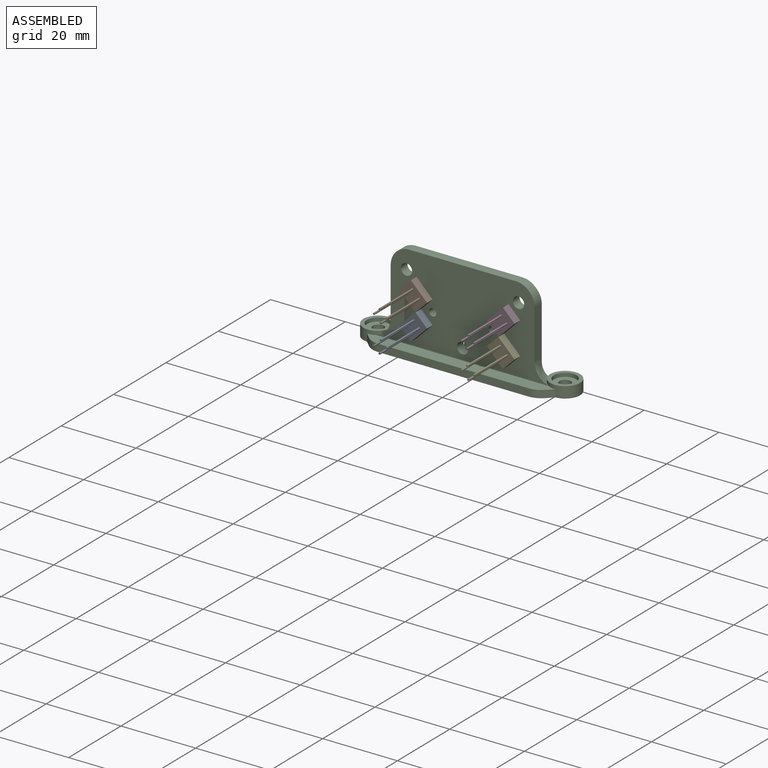
[diagram: assembled view]
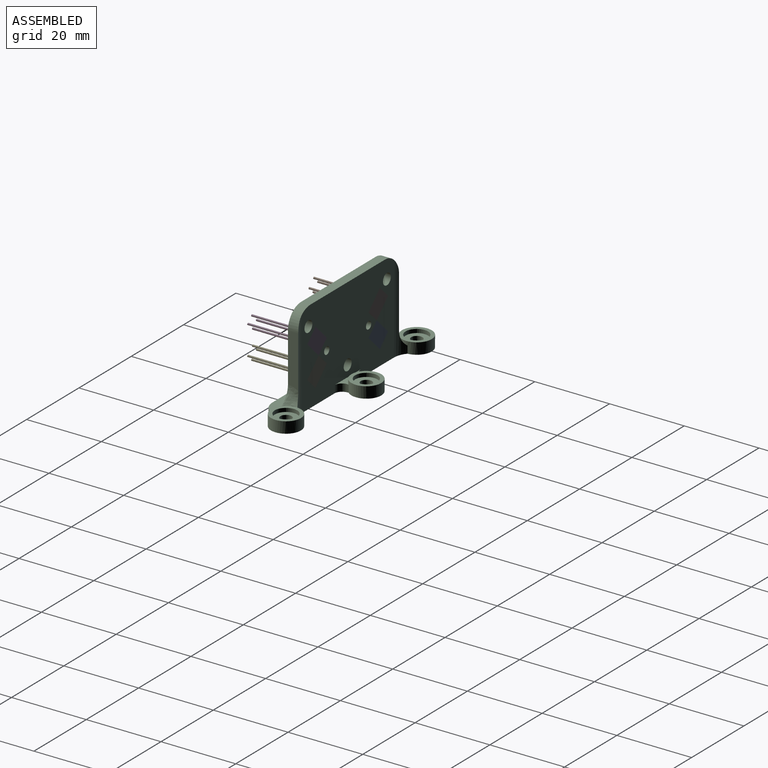
[diagram: assembled view, second angle]
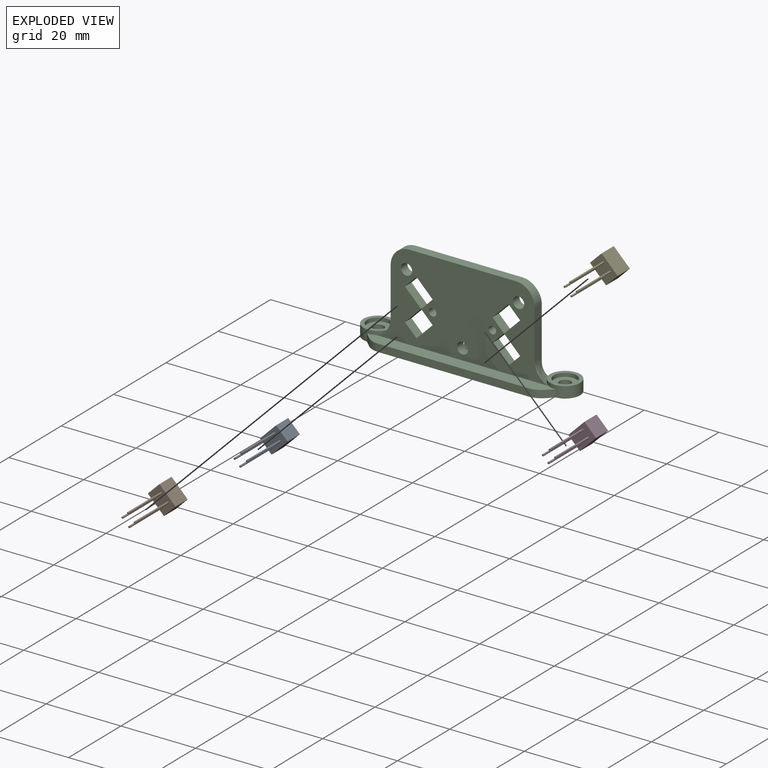
[diagram: exploded view]
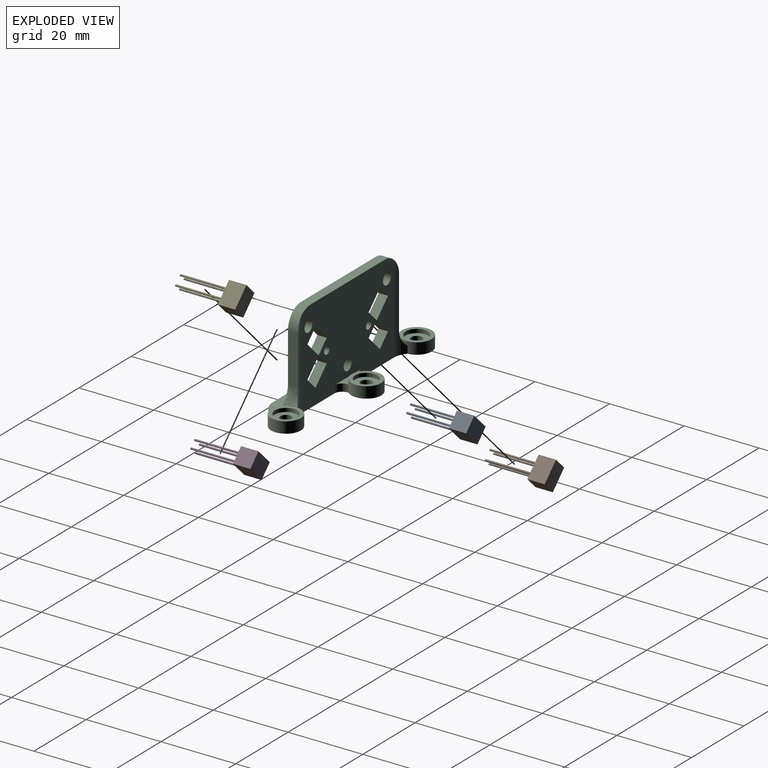
[diagram: exploded view, second angle]
ASSEMBLY  parts=5 mates=4
PART A: 14 faces, bbox 6.1x4.4x17.4 mm
  f0: cylinder r=0.25mm len=12.7mm, axis (0,0,-1), area 19.9mm2, adj f1,f10
  f1: plane 0.5x0.5mm, normal (0,0,-1), area 0.2mm2, adj f0
  f2: cylinder r=0.25mm len=12.7mm, axis (0,0,-1), area 19.9mm2, adj f3,f10
  f3: plane 0.5x0.5mm, normal (0,0,-1), area 0.2mm2, adj f2
  f4: cylinder r=0.25mm len=12.7mm, axis (0,0,-1), area 19.9mm2, adj f5,f10
  f5: plane 0.5x0.5mm, normal (0,0,-1), area 0.2mm2, adj f4
  f6: plane 6.1x4.65mm, normal (0,-1,0), area 28.4mm2, adj f7,f9,f10,f13
  f7: plane 4.65x4.39mm, normal (1,0,0), area 20.4mm2, adj f6,f8,f10,f13
  f8: plane 6.1x4.65mm, normal (0,1,0), area 28.4mm2, adj f7,f9,f10,f13
  f9: plane 4.65x4.39mm, normal (-1,0,0), area 20.4mm2, adj f6,f8,f10,f13
  f10: plane 6.1x4.39mm, normal (0,0,-1), area 26mm2, adj f0,f2,f4,f6,f7,f8,f9,f11
  f11: cylinder r=0.25mm len=12.7mm, axis (0,0,-1), area 19.9mm2, adj f10,f12
  f12: plane 0.5x0.5mm, normal (0,0,-1), area 0.2mm2, adj f11
  f13: plane 6.1x4.39mm, normal (0,0,1), area 26.8mm2, adj f6,f7,f8,f9
PART B: same geometry as A
PART C: 63 faces, bbox 58.9x15.9x25.9 mm
  f0: plane 47.01x23.88mm, normal (0,-1,0), area 750.2mm2, adj f9,f11,f12,f13,f34,f35,f36,f37
  f1: plane 35.31x25mm, normal (0,1,0), area 725.3mm2, adj f2,f8,f10,f13,f22,f25,f26,f34
  f2: cylinder r=5mm len=23.66mm, axis (0,0,-1), area 43.7mm2, adj f1,f10,f12,f17,f60,f61
  f3: plane 2x1.6mm, normal (-0.7,-0.71,0), area 4.5mm2, adj f4,f9,f10,f17
  f4: cylinder r=5mm len=3.5mm, axis (0,0,-1), area 7.8mm2, adj f3,f5,f9,f10
  f5: plane 40.22x2mm, normal (0,-1,0), area 80.4mm2, adj f4,f6,f9,f10
  f6: cylinder r=5mm len=3.5mm, axis (0,0,-1), area 7.8mm2, adj f5,f7,f9,f10
  f7: plane 2x1.6mm, normal (0.7,-0.71,0), area 4.5mm2, adj f6,f9,f10,f29
  f8: cylinder r=5mm len=23.66mm, axis (0,0,-1), area 43.7mm2, adj f1,f10,f11,f29,f59,f62
  f9: plane 50.43x3.5mm, normal (0,0,1), area 164.7mm2, adj f0,f3,f4,f5,f6,f7,f17,f29
  f10: plane 58x15mm, normal (0,0,-1), area 416.4mm2, adj f1,f2,f3,f4,f5,f6,f7,f8
  f11: plane 13.96x2.76mm, normal (1,0,0), area 36.9mm2, adj f0,f8,f59,f62
  f12: plane 13.96x2.76mm, normal (-1,0,0), area 36.9mm2, adj f0,f2,f60,f61
  f13: plane 28.5x2.5mm, normal (0,0,1), area 71.3mm2, adj f0,f1,f59,f60
  f14: cylinder r=1.5mm len=3mm, axis (0,0,-1), area 18.8mm2, adj f10,f15
  f15: plane 6x6mm, normal (0,0,1), area 21.2mm2, adj f14,f16
  f16: cylinder r=3mm len=6mm, axis (0,0,-1), area 18.8mm2, adj f15,f18
  f17: cylinder r=4mm len=8mm, axis (0,0,-1), area 61.8mm2, adj f2,f3,f9,f10,f18,f61
  f18: plane 8x8mm, normal (0,0,1), area 22mm2, adj f16,f17
  f19: cylinder r=1.5mm len=3mm, axis (0,0,-1), area 18.8mm2, adj f10,f20
  f20: plane 6x6mm, normal (0,0,1), area 21.2mm2, adj f19,f21
  f21: cylinder r=3mm len=6mm, axis (0,0,-1), area 18.8mm2, adj f20,f28
  f22: cylinder r=2mm len=2mm, axis (0,0,-1), area 6.3mm2, adj f1,f10,f23,f26
  f23: plane 2x0.35mm, normal (1,0,0), area 0.7mm2, adj f10,f22,f26,f27
  f24: plane 2x0.35mm, normal (-1,0,0), area 0.7mm2, adj f10,f25,f26,f27
  f25: cylinder r=2mm len=2mm, axis (0,0,-1), area 6.3mm2, adj f1,f10,f24,f26
  f26: plane 10x2.35mm, normal (0,0,1), area 10.2mm2, adj f1,f22,f23,f24,f25,f27
  f27: cylinder r=4mm len=8mm, axis (0,0,-1), area 61.8mm2, adj f10,f23,f24,f26,f28
  f28: plane 8x8mm, normal (0,0,1), area 22mm2, adj f21,f27
  f29: cylinder r=4mm len=8mm, axis (0,0,-1), area 61.8mm2, adj f7,f8,f9,f10,f33,f62
  f30: cylinder r=1.5mm len=3mm, axis (0,0,-1), area 18.8mm2, adj f10,f31
  f31: plane 6x6mm, normal (0,0,1), area 21.2mm2, adj f30,f32
  f32: cylinder r=3mm len=6mm, axis (0,0,-1), area 18.8mm2, adj f31,f33
  f33: plane 8x8mm, normal (0,0,1), area 22mm2, adj f29,f32
  f34: cylinder r=0.03mm len=2.5mm, axis (0,-1,0), area 0.1mm2, adj f0,f1,f35,f38
  f35: plane 3.09x3.09mm, normal (-0.71,0,0.71), area 10.9mm2, adj f0,f1,f34,f36
  f36: plane 4.31x4.31mm, normal (-0.71,0,-0.71), area 15.2mm2, adj f0,f1,f35,f37
  f37: plane 3.1x3.1mm, normal (0.71,0,-0.71), area 11mm2, adj f0,f1,f36,f38
  f38: plane 4.29x4.29mm, normal (0.71,0,0.71), area 15.2mm2, adj f0,f1,f34,f37
  f39: cylinder r=1.5mm len=3mm, axis (0,-1,0), area 23.6mm2, adj f0,f1
  f40: cylinder r=0.02mm len=2.5mm, axis (0,-1,0), area 0.1mm2, adj f0,f1,f41,f44
  f41: plane 3.09x3.09mm, normal (0.71,0,-0.71), area 10.9mm2, adj f0,f1,f40,f42
  f42: plane 4.31x4.31mm, normal (0.71,0,0.71), area 15.2mm2, adj f0,f1,f41,f43
  f43: plane 3.1x3.1mm, normal (-0.71,0,0.71), area 11mm2, adj f0,f1,f42,f44
  f44: plane 4.3x4.3mm, normal (-0.71,0,-0.71), area 15.2mm2, adj f0,f1,f40,f43
  f45: cylinder r=1mm len=2.5mm, axis (0,-1,0), area 15.7mm2, adj f0,f1
  f46: cylinder r=1mm len=2.5mm, axis (0,-1,0), area 15.7mm2, adj f0,f1
  f47: cylinder r=1.5mm len=3mm, axis (0,-1,0), area 23.6mm2, adj f0,f1
  f48: plane 3.09x3.09mm, normal (0.71,0,0.71), area 10.9mm2, adj f0,f1,f49,f52
  f49: cylinder r=0.02mm len=2.5mm, axis (0,-1,0), area 0.1mm2, adj f0,f1,f48,f50
  f50: plane 4.3x4.3mm, normal (-0.71,0,0.71), area 15.2mm2, adj f0,f1,f49,f51
  f51: plane 3.1x3.1mm, normal (-0.71,0,-0.71), area 11mm2, adj f0,f1,f50,f52
  f52: plane 4.31x4.31mm, normal (0.71,0,-0.71), area 15.2mm2, adj f0,f1,f48,f51
  f53: cylinder r=1.5mm len=3mm, axis (0,-1,0), area 23.6mm2, adj f0,f1
  f54: plane 3.09x3.09mm, normal (-0.71,0,-0.71), area 10.9mm2, adj f0,f1,f55,f58
  f55: cylinder r=0.03mm len=2.5mm, axis (0,-1,0), area 0.1mm2, adj f0,f1,f54,f56
  f56: plane 4.29x4.29mm, normal (0.71,0,-0.71), area 15.2mm2, adj f0,f1,f55,f57
  f57: plane 3.1x3.1mm, normal (0.71,0,0.71), area 11mm2, adj f0,f1,f56,f58
  f58: plane 4.31x4.31mm, normal (-0.71,0,0.71), area 15.2mm2, adj f0,f1,f54,f57
  f59: cylinder r=5mm len=5mm, axis (0,-1,0), area 20.2mm2, adj f0,f1,f8,f11,f13
  f60: cylinder r=5mm len=5mm, axis (0,1,0), area 20.2mm2, adj f0,f1,f2,f12,f13
  f61: bspline ~5.02x5.01mm, area 14.5mm2, adj f0,f2,f12,f17
  f62: bspline ~5.02x5.01mm, area 16.8mm2, adj f0,f8,f11,f29
PART D: same geometry as A
PART E: same geometry as A
PLACE A rot(axis=(-0.28,0.68,0.68),148.6deg) t=(13.26,12.79,17.6)mm
PLACE B rot(axis=(-0.28,-0.68,-0.68),148.6deg) t=(13.25,12.79,25.03)mm
PLACE C t=(24.97,14.44,9.81)mm fixed
PLACE D rot(axis=(-0.86,-0.36,-0.36),98.4deg) t=(36.68,12.79,25.02)mm
PLACE E rot(axis=(-0.86,0.36,0.36),98.4deg) t=(36.68,12.79,17.6)mm
MATE fastened E.f6 <-> C.f44  axis (0.71,0,0.71) through (38.24,17.44,19.15)mm
MATE fastened B.f6 <-> C.f38  axis (-0.71,0,-0.71) through (11.7,17.44,23.48)mm
MATE fastened D.f6 <-> C.f52  axis (-0.71,0,0.71) through (35.12,17.44,26.57)mm
MATE fastened A.f7 <-> C.f57  axis (-0.71,0,-0.71) through (11.1,17.44,15.45)mm
